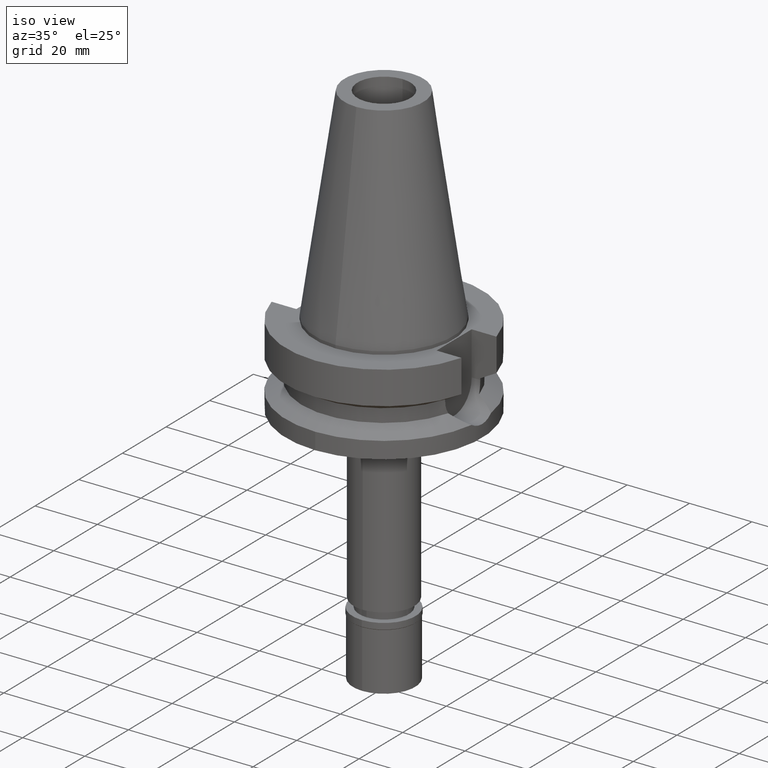
[diagram: clean part render]
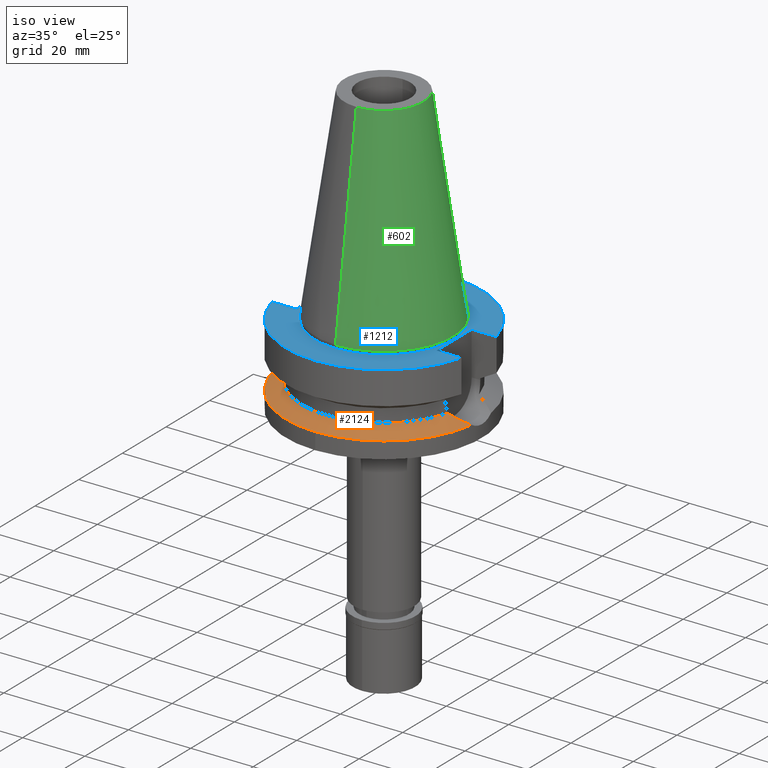
[diagram: same view with three faces highlighted in distinct colors, each labeled with its STEP entity id]
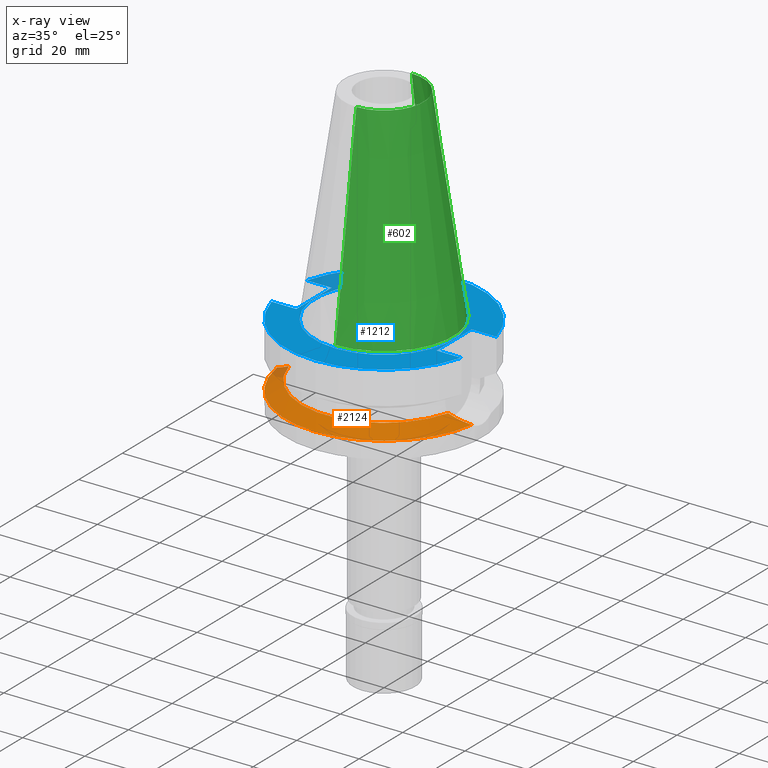
[diagram: x-ray of the same camera — body ghosted, the three highlighted faces saturated]
A machine part, iso view with three faces highlighted in distinct colors.
The next image is the same camera in x-ray (body ghosted, the three faces saturated) — at least one of them is partly hidden behind the body in this view.
Their STEP definitions:

[orange] entity #2124 — the highlighted conical surface has half-angle 60 deg.
#2 = DIRECTION ( 'NONE',  ( 0.0000000000000000000, 0.0000000000000000000, -1.000000000000000000 ) ) ;
#52 = CARTESIAN_POINT ( 'NONE',  ( 0.0000000000000000000, 0.0000000000000000000, -18.74774300138999905 ) ) ;
#64 = DIRECTION ( 'NONE',  ( 0.0000000000000000000, 0.0000000000000000000, 1.000000000000000000 ) ) ;
#82 = CARTESIAN_POINT ( 'NONE',  ( 29.30501910517657294, -5.663916394718986780, -20.67941857294540142 ) ) ;
#92 = EDGE_LOOP ( 'NONE', ( #2403, #2833, #1863, #2260, #104 ) ) ;
#101 = DIRECTION ( 'NONE',  ( 0.0000000000000000000, -1.000000000000000000, 0.0000000000000000000 ) ) ;
#104 = ORIENTED_EDGE ( 'NONE', *, *, #1154, .F. ) ;
#135 = CARTESIAN_POINT ( 'NONE',  ( 31.17899877608999759, -4.485536235554000051, -21.63449434733000132 ) ) ;
#142 = VERTEX_POINT ( 'NONE', #194 ) ;
#193 = CARTESIAN_POINT ( 'NONE',  ( -26.80931931348100861, -6.746680813015179190, -19.40409000558941344 ) ) ;
#194 = CARTESIAN_POINT ( 'NONE',  ( -25.53175183775000079, -7.097862220092999941, -18.74774300138999905 ) ) ;
#218 = CARTESIAN_POINT ( 'NONE',  ( -29.71177583915171638, -5.438677079855383845, -20.88697282972570690 ) ) ;
#265 = EDGE_CURVE ( 'NONE', #1531, #883, #1655, .T. ) ;
#274 = AXIS2_PLACEMENT_3D ( 'NONE', #2694, #2, #2913 ) ;
#328 = CARTESIAN_POINT ( 'NONE',  ( 27.56235187311534318, -6.433656882081100647, -19.78883285608997156 ) ) ;
#390 = CARTESIAN_POINT ( 'NONE',  ( 0.0000000000000000000, 0.0000000000000000000, -20.19111867435999841 ) ) ;
#423 = CIRCLE ( 'NONE', #2990, 26.50000000000000000 ) ;
#455 = CARTESIAN_POINT ( 'NONE',  ( -29.39542177084575059, -5.608191687816359128, -20.72553241551538150 ) ) ;
#525 = CARTESIAN_POINT ( 'NONE',  ( 30.86045767631609138, -4.727203380365797791, -21.47232699724506944 ) ) ;
#546 = B_SPLINE_CURVE_WITH_KNOTS ( 'NONE', 3,
 ( #2473, #525, #1503, #1302, #82, #1274, #2459, #2739, #1035, #328, #802, #792, #1263, #1025, #2945, #2234 ),
 .UNSPECIFIED., .F., .F.,
 ( 4, 2, 2, 2, 1, 1, 2, 2, 4 ),
 ( 0.0000000000000000000, 0.2500000000000035527, 0.5000000000000071054, 0.6250000000000082157, 0.6875000000000087708, 0.7187500000000085487, 0.7343750000000084377, 0.7500000000000083267, 1.000000000000000000 ),
 .UNSPECIFIED. ) ;
#639 = AXIS2_PLACEMENT_3D ( 'NONE', #390, #1390, #2093 ) ;
#792 = CARTESIAN_POINT ( 'NONE',  ( 27.39208325727127402, -6.498069673647941080, -19.70168577019282807 ) ) ;
#802 = CARTESIAN_POINT ( 'NONE',  ( 27.46040259486316160, -6.472355060413431005, -19.73665506194553743 ) ) ;
#883 = VERTEX_POINT ( 'NONE', #2714 ) ;
#906 = CARTESIAN_POINT ( 'NONE',  ( -29.91453044910779013, -5.323508518013380097, -20.99038764652650002 ) ) ;
#911 = EDGE_CURVE ( 'NONE', #1531, #2630, #546, .T. ) ;
#978 = CARTESIAN_POINT ( 'NONE',  ( -31.17899877608999759, -4.485536235554000051, -21.63449434733000132 ) ) ;
#1025 = CARTESIAN_POINT ( 'NONE',  ( 26.79073961260734293, -6.720706211018012688, -19.39382962665164101 ) ) ;
#1035 = CARTESIAN_POINT ( 'NONE',  ( 27.79652155379815781, -6.342513309151484258, -19.90864803803457050 ) ) ;
#1145 = CIRCLE ( 'NONE', #1957, 31.50000000000000000 ) ;
#1154 = EDGE_CURVE ( 'NONE', #2162, #142, #2919, .T. ) ;
#1169 = CARTESIAN_POINT ( 'NONE',  ( -27.91330892876171532, -6.327523978455355191, -19.96871652735099545 ) ) ;
#1263 = CARTESIAN_POINT ( 'NONE',  ( 27.35651530405005261, -6.511340689749947508, -19.68347850422450307 ) ) ;
#1274 = CARTESIAN_POINT ( 'NONE',  ( 28.61307923435774470, -5.993847916461666259, -20.32606150822332225 ) ) ;
#1302 = CARTESIAN_POINT ( 'NONE',  ( 29.72796427254882801, -5.435870564138586936, -20.89514034267255482 ) ) ;
#1335 = EDGE_CURVE ( 'NONE', #883, #2162, #1145, .T. ) ;
#1382 = CARTESIAN_POINT ( 'NONE',  ( -30.49834997223226196, -4.972564726818661462, -21.28799680374505954 ) ) ;
#1390 = DIRECTION ( 'NONE',  ( 0.0000000000000000000, 0.0000000000000000000, -1.000000000000000000 ) ) ;
#1486 = DIRECTION ( 'NONE',  ( 0.0000000000000000000, -1.000000000000000000, 0.0000000000000000000 ) ) ;
#1503 = CARTESIAN_POINT ( 'NONE',  ( 30.50651974147280754, -4.967113627366422257, -21.29202272629548176 ) ) ;
#1508 = DIRECTION ( 'NONE',  ( 0.0000000000000000000, 0.0000000000000000000, -1.000000000000000000 ) ) ;
#1531 = VERTEX_POINT ( 'NONE', #135 ) ;
#1655 = CIRCLE ( 'NONE', #274, 31.50000000000001421 ) ;
#1663 = CARTESIAN_POINT ( 'NONE',  ( -28.90187141826897843, -5.856153604159628046, -20.47355099996144290 ) ) ;
#1692 = CARTESIAN_POINT ( 'NONE',  ( -29.06837331833940752, -5.774771881200819301, -20.55857123836279143 ) ) ;
#1695 = EDGE_CURVE ( 'NONE', #142, #2630, #423, .T. ) ;
#1830 = CARTESIAN_POINT ( 'NONE',  ( 25.53175183775000079, -7.097862220092999941, -18.74774300138999905 ) ) ;
#1863 = ORIENTED_EDGE ( 'NONE', *, *, #911, .T. ) ;
#1920 = CARTESIAN_POINT ( 'NONE',  ( -25.53175183775000079, -7.097862220092999941, -18.74774300138999905 ) ) ;
#1957 = AXIS2_PLACEMENT_3D ( 'NONE', #2465, #1508, #101 ) ;
#2093 = DIRECTION ( 'NONE',  ( 0.0000000000000000000, -1.000000000000000000, 0.0000000000000000000 ) ) ;
#2120 = CARTESIAN_POINT ( 'NONE',  ( -31.17899877608999759, -4.485536235554000051, -21.63449434733000132 ) ) ;
#2124 = ADVANCED_FACE ( 'NONE', ( #2793 ), #2609, .T. ) ;
#2162 = VERTEX_POINT ( 'NONE', #978 ) ;
#2234 = CARTESIAN_POINT ( 'NONE',  ( 25.53175183775000079, -7.097862220092999941, -18.74774300138999905 ) ) ;
#2260 = ORIENTED_EDGE ( 'NONE', *, *, #1695, .F. ) ;
#2366 = CARTESIAN_POINT ( 'NONE',  ( -28.95681088555148008, -5.829556959639854874, -20.50160582804763365 ) ) ;
#2403 = ORIENTED_EDGE ( 'NONE', *, *, #1335, .F. ) ;
#2410 = CARTESIAN_POINT ( 'NONE',  ( -29.23418919834979235, -5.692139133024877395, -20.64323326339246023 ) ) ;
#2459 = CARTESIAN_POINT ( 'NONE',  ( 28.37101625611316180, -6.102695490110012777, -20.20238475897726360 ) ) ;
#2465 = CARTESIAN_POINT ( 'NONE',  ( 0.0000000000000000000, 0.0000000000000000000, -21.63449434733000132 ) ) ;
#2473 = CARTESIAN_POINT ( 'NONE',  ( 31.17899877608999759, -4.485536235554000051, -21.63449434733000132 ) ) ;
#2609 = CONICAL_SURFACE ( 'NONE', #639, 29.00000000000000000, 1.047197551196400456 ) ;
#2630 = VERTEX_POINT ( 'NONE', #1830 ) ;
#2694 = CARTESIAN_POINT ( 'NONE',  ( 0.0000000000000000000, 0.0000000000000000000, -21.63449434733000132 ) ) ;
#2714 = CARTESIAN_POINT ( 'NONE',  ( 0.0000000000000000000, -31.50000000000000000, -21.63449434733000132 ) ) ;
#2739 = CARTESIAN_POINT ( 'NONE',  ( 27.99086246990127336, -6.263059440733979244, -20.00803304360013968 ) ) ;
#2793 = FACE_OUTER_BOUND ( 'NONE', #92, .T. ) ;
#2833 = ORIENTED_EDGE ( 'NONE', *, *, #265, .F. ) ;
#2913 = DIRECTION ( 'NONE',  ( 0.9898094849552905306, -0.1423979757318985240, 0.0000000000000000000 ) ) ;
#2919 = B_SPLINE_CURVE_WITH_KNOTS ( 'NONE', 3,
 ( #2120, #3065, #1382, #906, #218, #455, #2410, #1692, #2366, #1663, #1169, #193, #1920 ),
 .UNSPECIFIED., .F., .F.,
 ( 4, 2, 2, 1, 2, 2, 4 ),
 ( 0.0000000000000000000, 0.2499999999999992228, 0.3749999999999983902, 0.4374999999999980016, 0.4687499999999984457, 0.4999999999999988898, 1.000000000000000000 ),
 .UNSPECIFIED. ) ;
#2945 = CARTESIAN_POINT ( 'NONE',  ( 26.19327180361023011, -6.916021717082781350, -19.08759718212828460 ) ) ;
#2990 = AXIS2_PLACEMENT_3D ( 'NONE', #52, #64, #1486 ) ;
#3065 = CARTESIAN_POINT ( 'NONE',  ( -30.85497057865694615, -4.731366269316811035, -21.46953354896411170 ) ) ;

[blue] entity #1212 — the highlighted planar face has unit normal (0, 0, -1).
#9 = ORIENTED_EDGE ( 'NONE', *, *, #1992, .T. ) ;
#15 = AXIS2_PLACEMENT_3D ( 'NONE', #2525, #1322, #870 ) ;
#66 = VECTOR ( 'NONE', #1983, 1000.000000000000000 ) ;
#113 = LINE ( 'NONE', #869, #2954 ) ;
#119 = CIRCLE ( 'NONE', #419, 22.22500000000000142 ) ;
#121 = CIRCLE ( 'NONE', #1147, 31.50000000000000000 ) ;
#138 = LINE ( 'NONE', #1841, #2249 ) ;
#166 = LINE ( 'NONE', #629, #1802 ) ;
#173 = AXIS2_PLACEMENT_3D ( 'NONE', #403, #1827, #2781 ) ;
#178 = CARTESIAN_POINT ( 'NONE',  ( 0.0000000000000000000, 0.0000000000000000000, -1.000000000000000000 ) ) ;
#202 = VERTEX_POINT ( 'NONE', #943 ) ;
#204 = FACE_BOUND ( 'NONE', #2389, .T. ) ;
#219 = AXIS2_PLACEMENT_3D ( 'NONE', #1181, #2149, #705 ) ;
#259 = ORIENTED_EDGE ( 'NONE', *, *, #492, .F. ) ;
#306 = EDGE_CURVE ( 'NONE', #1075, #2628, #2392, .T. ) ;
#338 = ORIENTED_EDGE ( 'NONE', *, *, #2583, .T. ) ;
#357 = CARTESIAN_POINT ( 'NONE',  ( -30.45402272279000044, -8.050000000000000711, -1.000000000000000000 ) ) ;
#403 = CARTESIAN_POINT ( 'NONE',  ( 0.0000000000000000000, 0.0000000000000000000, -1.000000000000000000 ) ) ;
#419 = AXIS2_PLACEMENT_3D ( 'NONE', #178, #733, #2667 ) ;
#492 = EDGE_CURVE ( 'NONE', #2543, #202, #1751, .T. ) ;
#603 = CARTESIAN_POINT ( 'NONE',  ( 22.50000000000000000, 8.050000000000000711, -1.000000000000000000 ) ) ;
#629 = CARTESIAN_POINT ( 'NONE',  ( -30.45402272279000044, 8.050000000000000711, -1.000000000000000000 ) ) ;
#705 = DIRECTION ( 'NONE',  ( 0.0000000000000000000, -1.000000000000000000, 0.0000000000000000000 ) ) ;
#718 = CARTESIAN_POINT ( 'NONE',  ( -22.50000000000000000, -8.050000000000000711, -1.000000000000000000 ) ) ;
#733 = DIRECTION ( 'NONE',  ( 0.0000000000000000000, 0.0000000000000000000, 1.000000000000000000 ) ) ;
#748 = ORIENTED_EDGE ( 'NONE', *, *, #306, .F. ) ;
#756 = DIRECTION ( 'NONE',  ( 1.000000000000000000, -3.506251283225999947E-14, 0.0000000000000000000 ) ) ;
#798 = ORIENTED_EDGE ( 'NONE', *, *, #1736, .F. ) ;
#858 = CARTESIAN_POINT ( 'NONE',  ( 0.0000000000000000000, 22.22500000000000142, -1.000000000000000000 ) ) ;
#869 = CARTESIAN_POINT ( 'NONE',  ( 22.50000000000000000, -8.050000000000000711, -1.000000000000000000 ) ) ;
#870 = DIRECTION ( 'NONE',  ( 0.0000000000000000000, -1.000000000000000000, 0.0000000000000000000 ) ) ;
#923 = FACE_OUTER_BOUND ( 'NONE', #3056, .T. ) ;
#943 = CARTESIAN_POINT ( 'NONE',  ( -22.50000000000000000, 8.050000000000000711, -1.000000000000000000 ) ) ;
#995 = VECTOR ( 'NONE', #756, 1000.000000000000000 ) ;
#1036 = CARTESIAN_POINT ( 'NONE',  ( 0.0000000000000000000, 0.0000000000000000000, -1.000000000000000000 ) ) ;
#1075 = VERTEX_POINT ( 'NONE', #603 ) ;
#1129 = ORIENTED_EDGE ( 'NONE', *, *, #2070, .F. ) ;
#1135 = EDGE_CURVE ( 'NONE', #1991, #2276, #119, .T. ) ;
#1147 = AXIS2_PLACEMENT_3D ( 'NONE', #1036, #2011, #1504 ) ;
#1181 = CARTESIAN_POINT ( 'NONE',  ( 0.0000000000000000000, 0.0000000000000000000, -1.000000000000000000 ) ) ;
#1203 = CARTESIAN_POINT ( 'NONE',  ( 30.45402272279000044, -8.050000000000000711, -1.000000000000000000 ) ) ;
#1212 = ADVANCED_FACE ( 'NONE', ( #923, #204 ), #3093, .F. ) ;
#1227 = LINE ( 'NONE', #1925, #995 ) ;
#1242 = CARTESIAN_POINT ( 'NONE',  ( 22.50000000000000000, 8.050000000000000711, -1.000000000000000000 ) ) ;
#1255 = ORIENTED_EDGE ( 'NONE', *, *, #1911, .F. ) ;
#1314 = CARTESIAN_POINT ( 'NONE',  ( 22.50000000000000000, -8.050000000000000711, -1.000000000000000000 ) ) ;
#1322 = DIRECTION ( 'NONE',  ( 0.0000000000000000000, 0.0000000000000000000, -1.000000000000000000 ) ) ;
#1339 = CIRCLE ( 'NONE', #173, 22.22500000000000142 ) ;
#1446 = EDGE_CURVE ( 'NONE', #2513, #2766, #2801, .T. ) ;
#1468 = DIRECTION ( 'NONE',  ( 0.0000000000000000000, -1.000000000000000000, 0.0000000000000000000 ) ) ;
#1490 = VERTEX_POINT ( 'NONE', #3003 ) ;
#1504 = DIRECTION ( 'NONE',  ( 0.0000000000000000000, 1.000000000000000000, 0.0000000000000000000 ) ) ;
#1630 = DIRECTION ( 'NONE',  ( 1.000000000000000000, 3.595582526110999949E-14, 0.0000000000000000000 ) ) ;
#1736 = EDGE_CURVE ( 'NONE', #1490, #2963, #121, .T. ) ;
#1751 = LINE ( 'NONE', #2712, #66 ) ;
#1802 = VECTOR ( 'NONE', #2539, 1000.000000000000000 ) ;
#1827 = DIRECTION ( 'NONE',  ( 0.0000000000000000000, 0.0000000000000000000, 1.000000000000000000 ) ) ;
#1841 = CARTESIAN_POINT ( 'NONE',  ( -30.45402272279000044, -8.050000000000000711, -1.000000000000000000 ) ) ;
#1908 = VECTOR ( 'NONE', #1468, 1000.000000000000000 ) ;
#1911 = EDGE_CURVE ( 'NONE', #2276, #1991, #1339, .T. ) ;
#1925 = CARTESIAN_POINT ( 'NONE',  ( 22.50000000000000000, 8.050000000000000711, -1.000000000000000000 ) ) ;
#1983 = DIRECTION ( 'NONE',  ( 0.0000000000000000000, 1.000000000000000000, 0.0000000000000000000 ) ) ;
#1991 = VERTEX_POINT ( 'NONE', #858 ) ;
#1992 = EDGE_CURVE ( 'NONE', #1490, #202, #166, .T. ) ;
#2011 = DIRECTION ( 'NONE',  ( 0.0000000000000000000, 0.0000000000000000000, -1.000000000000000000 ) ) ;
#2070 = EDGE_CURVE ( 'NONE', #2766, #2543, #138, .T. ) ;
#2149 = DIRECTION ( 'NONE',  ( 0.0000000000000000000, 0.0000000000000000000, -1.000000000000000000 ) ) ;
#2249 = VECTOR ( 'NONE', #2813, 1000.000000000000000 ) ;
#2276 = VERTEX_POINT ( 'NONE', #2337 ) ;
#2337 = CARTESIAN_POINT ( 'NONE',  ( 0.0000000000000000000, -22.22500000000000142, -1.000000000000000000 ) ) ;
#2375 = EDGE_CURVE ( 'NONE', #2628, #2513, #113, .T. ) ;
#2389 = EDGE_LOOP ( 'NONE', ( #2718, #1255 ) ) ;
#2392 = LINE ( 'NONE', #1242, #1908 ) ;
#2513 = VERTEX_POINT ( 'NONE', #1203 ) ;
#2525 = CARTESIAN_POINT ( 'NONE',  ( 0.0000000000000000000, 0.0000000000000000000, -1.000000000000000000 ) ) ;
#2539 = DIRECTION ( 'NONE',  ( 1.000000000000000000, 3.550916904668000126E-14, 0.0000000000000000000 ) ) ;
#2543 = VERTEX_POINT ( 'NONE', #718 ) ;
#2583 = EDGE_CURVE ( 'NONE', #1075, #2963, #1227, .T. ) ;
#2628 = VERTEX_POINT ( 'NONE', #1314 ) ;
#2667 = DIRECTION ( 'NONE',  ( 0.0000000000000000000, 1.000000000000000000, 0.0000000000000000000 ) ) ;
#2712 = CARTESIAN_POINT ( 'NONE',  ( -22.50000000000000000, -8.050000000000000711, -1.000000000000000000 ) ) ;
#2718 = ORIENTED_EDGE ( 'NONE', *, *, #1135, .F. ) ;
#2766 = VERTEX_POINT ( 'NONE', #357 ) ;
#2781 = DIRECTION ( 'NONE',  ( 0.0000000000000000000, -1.000000000000000000, 0.0000000000000000000 ) ) ;
#2801 = CIRCLE ( 'NONE', #15, 31.50000000000000000 ) ;
#2813 = DIRECTION ( 'NONE',  ( 1.000000000000000000, -3.550916904668000126E-14, 0.0000000000000000000 ) ) ;
#2927 = CARTESIAN_POINT ( 'NONE',  ( 30.45402272279000044, 8.050000000000000711, -1.000000000000000000 ) ) ;
#2949 = ORIENTED_EDGE ( 'NONE', *, *, #2375, .F. ) ;
#2954 = VECTOR ( 'NONE', #1630, 1000.000000000000000 ) ;
#2963 = VERTEX_POINT ( 'NONE', #2927 ) ;
#3003 = CARTESIAN_POINT ( 'NONE',  ( -30.45402272279000044, 8.050000000000000711, -1.000000000000000000 ) ) ;
#3056 = EDGE_LOOP ( 'NONE', ( #1129, #3062, #2949, #748, #338, #798, #9, #259 ) ) ;
#3062 = ORIENTED_EDGE ( 'NONE', *, *, #1446, .F. ) ;
#3093 = PLANE ( 'NONE',  #219 ) ;

[green] entity #602 — the highlighted conical surface has half-angle 8.297 deg.
#23 = CIRCLE ( 'NONE', #1964, 12.68766899429999917 ) ;
#48 = DIRECTION ( 'NONE',  ( 0.0000000000000000000, 0.0000000000000000000, -1.000000000000000000 ) ) ;
#124 = VERTEX_POINT ( 'NONE', #2825 ) ;
#128 = AXIS2_PLACEMENT_3D ( 'NONE', #638, #2098, #584 ) ;
#252 = EDGE_CURVE ( 'NONE', #124, #2067, #23, .T. ) ;
#367 = CONICAL_SURFACE ( 'NONE', #128, 17.45633449714999941, 0.1448099680379422438 ) ;
#371 = CARTESIAN_POINT ( 'NONE',  ( 0.0000000000000000000, -22.22500000000000142, -2.273736754432000254E-13 ) ) ;
#420 = ORIENTED_EDGE ( 'NONE', *, *, #804, .T. ) ;
#442 = DIRECTION ( 'NONE',  ( 0.0000000000000000000, 0.0000000000000000000, -1.000000000000000000 ) ) ;
#465 = EDGE_CURVE ( 'NONE', #1206, #1805, #2009, .T. ) ;
#512 = CARTESIAN_POINT ( 'NONE',  ( 0.0000000000000000000, -12.68766899429999917, 65.40000000000000568 ) ) ;
#575 = EDGE_CURVE ( 'NONE', #124, #1206, #2266, .T. ) ;
#584 = DIRECTION ( 'NONE',  ( 0.0000000000000000000, -1.000000000000000000, 0.0000000000000000000 ) ) ;
#602 = ADVANCED_FACE ( 'NONE', ( #1575 ), #367, .T. ) ;
#638 = CARTESIAN_POINT ( 'NONE',  ( 0.0000000000000000000, 0.0000000000000000000, 32.70000000000000284 ) ) ;
#680 = ORIENTED_EDGE ( 'NONE', *, *, #252, .T. ) ;
#794 = ORIENTED_EDGE ( 'NONE', *, *, #575, .F. ) ;
#804 = EDGE_CURVE ( 'NONE', #2067, #1805, #1648, .T. ) ;
#913 = CARTESIAN_POINT ( 'NONE',  ( 0.0000000000000000000, -12.68766899429999917, 65.40000000000000568 ) ) ;
#1007 = DIRECTION ( 'NONE',  ( 0.0000000000000000000, -0.1443043893539925626, -0.9895333461855498891 ) ) ;
#1067 = DIRECTION ( 'NONE',  ( 0.0000000000000000000, 0.1443043893539925626, -0.9895333461855498891 ) ) ;
#1206 = VERTEX_POINT ( 'NONE', #3080 ) ;
#1320 = EDGE_LOOP ( 'NONE', ( #680, #420, #3087, #794 ) ) ;
#1466 = DIRECTION ( 'NONE',  ( 0.0000000000000000000, 1.000000000000000000, 0.0000000000000000000 ) ) ;
#1575 = FACE_OUTER_BOUND ( 'NONE', #1320, .T. ) ;
#1611 = CARTESIAN_POINT ( 'NONE',  ( 0.0000000000000000000, 12.68766899429999917, 65.40000000000000568 ) ) ;
#1648 = LINE ( 'NONE', #512, #2709 ) ;
#1805 = VERTEX_POINT ( 'NONE', #371 ) ;
#1948 = DIRECTION ( 'NONE',  ( 0.0000000000000000000, 1.000000000000000000, 0.0000000000000000000 ) ) ;
#1964 = AXIS2_PLACEMENT_3D ( 'NONE', #2624, #442, #1948 ) ;
#2009 = CIRCLE ( 'NONE', #2551, 22.22500000000000142 ) ;
#2067 = VERTEX_POINT ( 'NONE', #913 ) ;
#2098 = DIRECTION ( 'NONE',  ( 0.0000000000000000000, 0.0000000000000000000, -1.000000000000000000 ) ) ;
#2266 = LINE ( 'NONE', #1611, #3049 ) ;
#2551 = AXIS2_PLACEMENT_3D ( 'NONE', #2691, #48, #1466 ) ;
#2624 = CARTESIAN_POINT ( 'NONE',  ( 0.0000000000000000000, 0.0000000000000000000, 65.40000000000000568 ) ) ;
#2691 = CARTESIAN_POINT ( 'NONE',  ( 0.0000000000000000000, 0.0000000000000000000, -2.273736754432000254E-13 ) ) ;
#2709 = VECTOR ( 'NONE', #1007, 1000.000000000000114 ) ;
#2825 = CARTESIAN_POINT ( 'NONE',  ( 0.0000000000000000000, 12.68766899429999917, 65.40000000000000568 ) ) ;
#3049 = VECTOR ( 'NONE', #1067, 1000.000000000000114 ) ;
#3080 = CARTESIAN_POINT ( 'NONE',  ( 0.0000000000000000000, 22.22500000000000142, -7.105427357600999334E-14 ) ) ;
#3087 = ORIENTED_EDGE ( 'NONE', *, *, #465, .F. ) ;